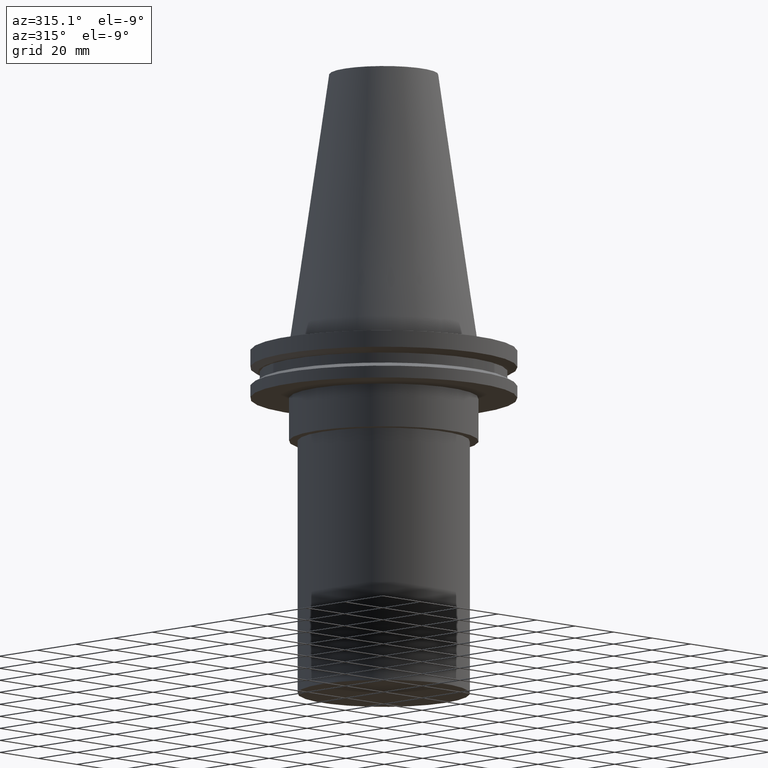
[diagram: clean part render]
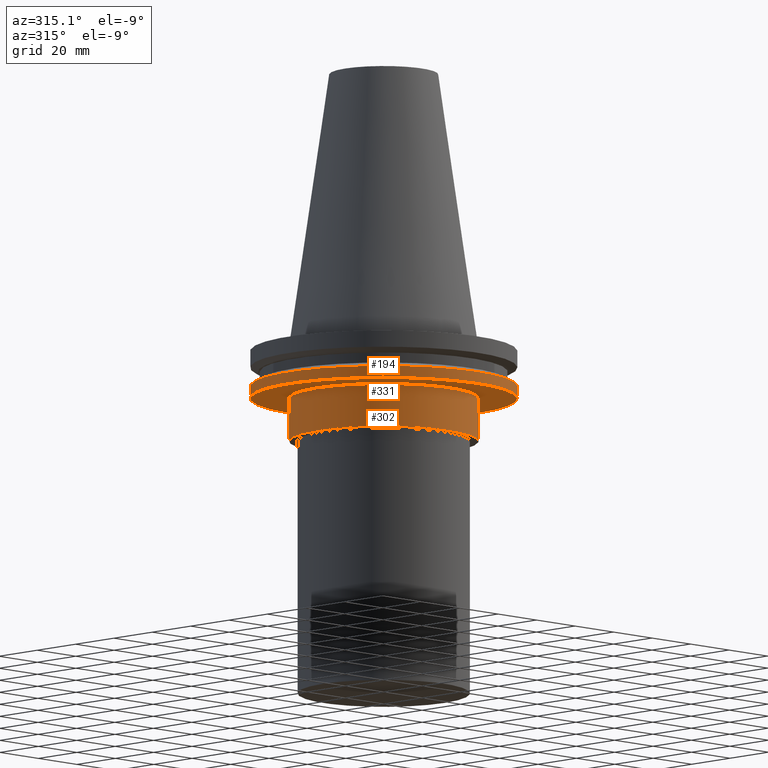
[diagram: same view with one multi-face feature highlighted, each face labeled with its STEP entity id]
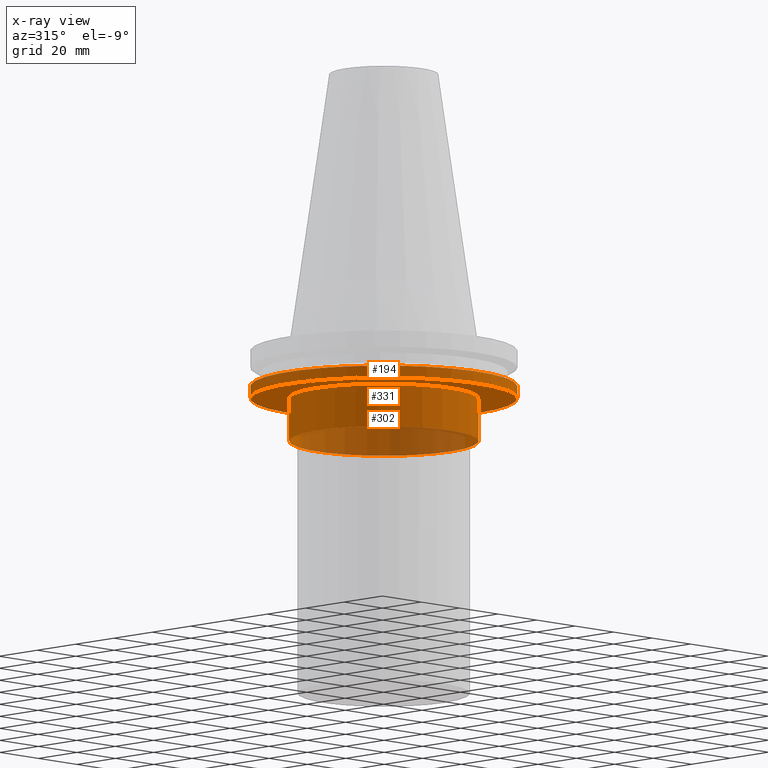
[diagram: x-ray of the same camera — body ghosted, the whole feature saturated]
A machine part, auxiliary view. The highlighted faces form ONE feature: a stepped (counterbored) hole: 2 coaxial cylindrical walls of radii 34.925 -> 49.215 mm joined by 1 annular planar shoulder face(s). The faces share edges in the B-rep.
The next image is the same camera in x-ray: the body ghosted and the whole hole feature saturated, so the bore chain is visible through the body.
Their STEP definitions:
[1] entity #194 (Cylinder):
#3 = CARTESIAN_POINT ( 'NONE',  ( 49.21499999999998920, 0.000000000000000000, -19.04999999999999716 ) ) ;
#7 = EDGE_LOOP ( 'NONE', ( #59 ) ) ;
#19 = EDGE_CURVE ( 'NONE', #276, #276, #321, .T. ) ;
#42 = CARTESIAN_POINT ( 'NONE',  ( 0.000000000000000000, 0.000000000000000000, -14.65761014474876944 ) ) ;
#45 = DIRECTION ( 'NONE',  ( -0.000000000000000000, -0.000000000000000000, 1.000000000000000000 ) ) ;
#48 = EDGE_LOOP ( 'NONE', ( #75 ) ) ;
#51 = EDGE_CURVE ( 'NONE', #123, #123, #134, .T. ) ;
#59 = ORIENTED_EDGE ( 'NONE', *, *, #19, .T. ) ;
#75 = ORIENTED_EDGE ( 'NONE', *, *, #51, .F. ) ;
#111 = DIRECTION ( 'NONE',  ( 1.000000000000000000, 0.000000000000000000, 0.000000000000000000 ) ) ;
#112 = DIRECTION ( 'NONE',  ( -0.000000000000000000, -0.000000000000000000, 1.000000000000000000 ) ) ;
#123 = VERTEX_POINT ( 'NONE', #247 ) ;
#134 = CIRCLE ( 'NONE', #306, 49.21499999999998920 ) ;
#194 = ADVANCED_FACE ( 'NONE', ( #362, #361 ), #367, .T. ) ;
#199 = CARTESIAN_POINT ( 'NONE',  ( 0.000000000000000000, 0.000000000000000000, -19.04999999999999716 ) ) ;
#208 = DIRECTION ( 'NONE',  ( 1.000000000000000000, 0.000000000000000000, 0.000000000000000000 ) ) ;
#211 = CARTESIAN_POINT ( 'NONE',  ( 0.000000000000000000, 0.000000000000000000, 101.5999999999999943 ) ) ;
#233 = DIRECTION ( 'NONE',  ( 1.000000000000000000, 0.000000000000000000, 0.000000000000000000 ) ) ;
#247 = CARTESIAN_POINT ( 'NONE',  ( 49.21499999999998920, 0.000000000000000000, -14.65761014474876944 ) ) ;
#276 = VERTEX_POINT ( 'NONE', #3 ) ;
#306 = AXIS2_PLACEMENT_3D ( 'NONE', #42, #112, #233 ) ;
#321 = CIRCLE ( 'NONE', #350, 49.21499999999998920 ) ;
#350 = AXIS2_PLACEMENT_3D ( 'NONE', #199, #45, #111 ) ;
#361 = FACE_OUTER_BOUND ( 'NONE', #7, .T. ) ;
#362 = FACE_OUTER_BOUND ( 'NONE', #48, .T. ) ;
#367 = CYLINDRICAL_SURFACE ( 'NONE', #382, 49.21499999999998920 ) ;
#382 = AXIS2_PLACEMENT_3D ( 'NONE', #211, #390, #208 ) ;
#390 = DIRECTION ( 'NONE',  ( -0.000000000000000000, -0.000000000000000000, 1.000000000000000000 ) ) ;
[2] entity #302 (Cylinder):
#11 = AXIS2_PLACEMENT_3D ( 'NONE', #317, #38, #163 ) ;
#38 = DIRECTION ( 'NONE',  ( -0.000000000000000000, -0.000000000000000000, 1.000000000000000000 ) ) ;
#85 = EDGE_CURVE ( 'NONE', #110, #110, #108, .T. ) ;
#90 = CARTESIAN_POINT ( 'NONE',  ( 34.92499999999999716, 0.000000000000000000, -35.00000000000000000 ) ) ;
#98 = VERTEX_POINT ( 'NONE', #90 ) ;
#108 = CIRCLE ( 'NONE', #340, 34.92499999999999716 ) ;
#110 = VERTEX_POINT ( 'NONE', #265 ) ;
#125 = DIRECTION ( 'NONE',  ( -0.000000000000000000, -0.000000000000000000, 1.000000000000000000 ) ) ;
#156 = CARTESIAN_POINT ( 'NONE',  ( 0.000000000000000000, 0.000000000000000000, 101.5999999999999943 ) ) ;
#163 = DIRECTION ( 'NONE',  ( 1.000000000000000000, 0.000000000000000000, 0.000000000000000000 ) ) ;
#179 = CIRCLE ( 'NONE', #11, 34.92499999999999716 ) ;
#191 = EDGE_LOOP ( 'NONE', ( #380 ) ) ;
#195 = CARTESIAN_POINT ( 'NONE',  ( 0.000000000000000000, 0.000000000000000000, -19.04999999999999716 ) ) ;
#230 = ORIENTED_EDGE ( 'NONE', *, *, #85, .F. ) ;
#263 = DIRECTION ( 'NONE',  ( -0.000000000000000000, -0.000000000000000000, 1.000000000000000000 ) ) ;
#265 = CARTESIAN_POINT ( 'NONE',  ( 34.92499999999999716, 0.000000000000000000, -19.04999999999999716 ) ) ;
#283 = CYLINDRICAL_SURFACE ( 'NONE', #332, 34.92499999999999716 ) ;
#296 = EDGE_LOOP ( 'NONE', ( #230 ) ) ;
#302 = ADVANCED_FACE ( 'NONE', ( #346, #342 ), #283, .T. ) ;
#317 = CARTESIAN_POINT ( 'NONE',  ( 0.000000000000000000, 0.000000000000000000, -35.00000000000000000 ) ) ;
#325 = DIRECTION ( 'NONE',  ( 1.000000000000000000, 0.000000000000000000, 0.000000000000000000 ) ) ;
#332 = AXIS2_PLACEMENT_3D ( 'NONE', #156, #125, #352 ) ;
#340 = AXIS2_PLACEMENT_3D ( 'NONE', #195, #263, #325 ) ;
#342 = FACE_OUTER_BOUND ( 'NONE', #191, .T. ) ;
#346 = FACE_OUTER_BOUND ( 'NONE', #296, .T. ) ;
#352 = DIRECTION ( 'NONE',  ( 1.000000000000000000, 0.000000000000000000, 0.000000000000000000 ) ) ;
#380 = ORIENTED_EDGE ( 'NONE', *, *, #384, .T. ) ;
#384 = EDGE_CURVE ( 'NONE', #98, #98, #179, .T. ) ;
[3] entity #331 (Plane):
#3 = CARTESIAN_POINT ( 'NONE',  ( 49.21499999999998920, 0.000000000000000000, -19.04999999999999716 ) ) ;
#19 = EDGE_CURVE ( 'NONE', #276, #276, #321, .T. ) ;
#26 = AXIS2_PLACEMENT_3D ( 'NONE', #187, #36, #162 ) ;
#36 = DIRECTION ( 'NONE',  ( 0.000000000000000000, -0.000000000000000000, 1.000000000000000000 ) ) ;
#45 = DIRECTION ( 'NONE',  ( -0.000000000000000000, -0.000000000000000000, 1.000000000000000000 ) ) ;
#62 = EDGE_LOOP ( 'NONE', ( #248 ) ) ;
#63 = EDGE_LOOP ( 'NONE', ( #298 ) ) ;
#85 = EDGE_CURVE ( 'NONE', #110, #110, #108, .T. ) ;
#96 = FACE_BOUND ( 'NONE', #62, .T. ) ;
#108 = CIRCLE ( 'NONE', #340, 34.92499999999999716 ) ;
#110 = VERTEX_POINT ( 'NONE', #265 ) ;
#111 = DIRECTION ( 'NONE',  ( 1.000000000000000000, 0.000000000000000000, 0.000000000000000000 ) ) ;
#162 = DIRECTION ( 'NONE',  ( 1.000000000000000000, 0.000000000000000000, 0.000000000000000000 ) ) ;
#187 = CARTESIAN_POINT ( 'NONE',  ( 0.000000000000000000, 49.21499999999998920, -19.04999999999999716 ) ) ;
#195 = CARTESIAN_POINT ( 'NONE',  ( 0.000000000000000000, 0.000000000000000000, -19.04999999999999716 ) ) ;
#199 = CARTESIAN_POINT ( 'NONE',  ( 0.000000000000000000, 0.000000000000000000, -19.04999999999999716 ) ) ;
#248 = ORIENTED_EDGE ( 'NONE', *, *, #85, .T. ) ;
#263 = DIRECTION ( 'NONE',  ( -0.000000000000000000, -0.000000000000000000, 1.000000000000000000 ) ) ;
#265 = CARTESIAN_POINT ( 'NONE',  ( 34.92499999999999716, 0.000000000000000000, -19.04999999999999716 ) ) ;
#276 = VERTEX_POINT ( 'NONE', #3 ) ;
#298 = ORIENTED_EDGE ( 'NONE', *, *, #19, .F. ) ;
#312 = PLANE ( 'NONE',  #26 ) ;
#321 = CIRCLE ( 'NONE', #350, 49.21499999999998920 ) ;
#325 = DIRECTION ( 'NONE',  ( 1.000000000000000000, 0.000000000000000000, 0.000000000000000000 ) ) ;
#331 = ADVANCED_FACE ( 'NONE', ( #375, #96 ), #312, .F. ) ;
#340 = AXIS2_PLACEMENT_3D ( 'NONE', #195, #263, #325 ) ;
#350 = AXIS2_PLACEMENT_3D ( 'NONE', #199, #45, #111 ) ;
#375 = FACE_OUTER_BOUND ( 'NONE', #63, .T. ) ;